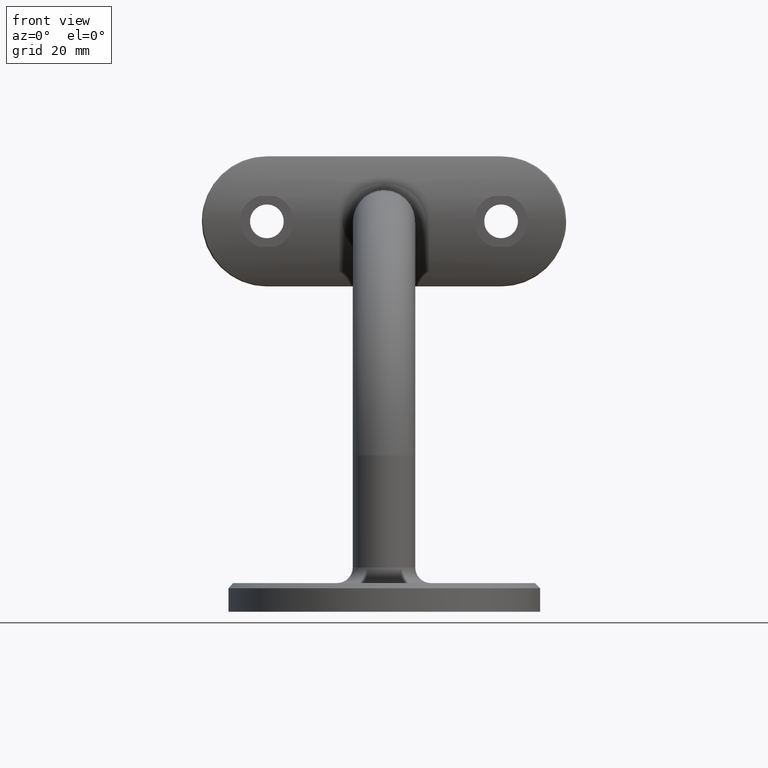
[diagram: clean part render]
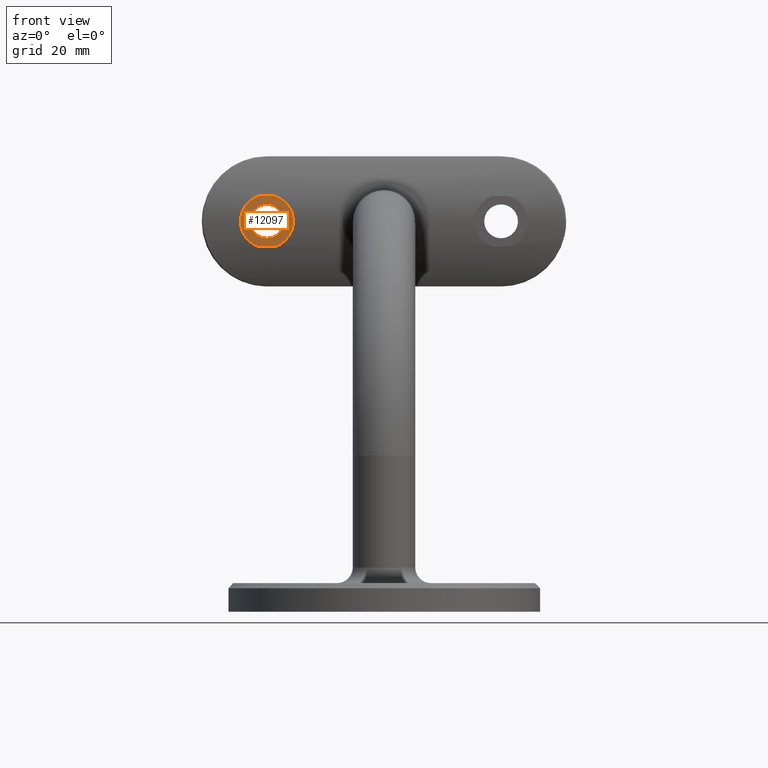
[diagram: same view with one face highlighted and labeled with its STEP entity id]
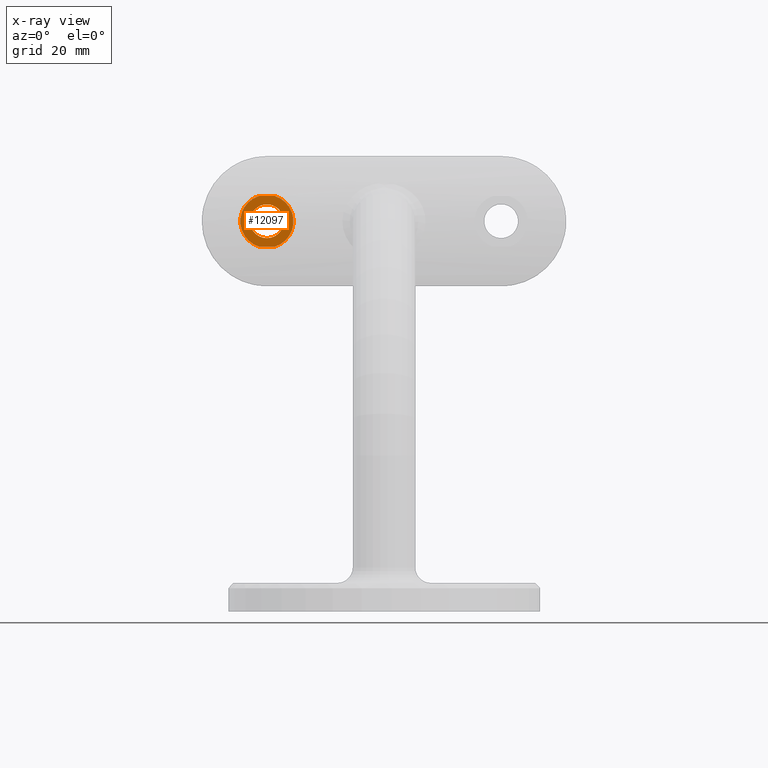
[diagram: x-ray of the same camera — body ghosted, the highlighted face saturated]
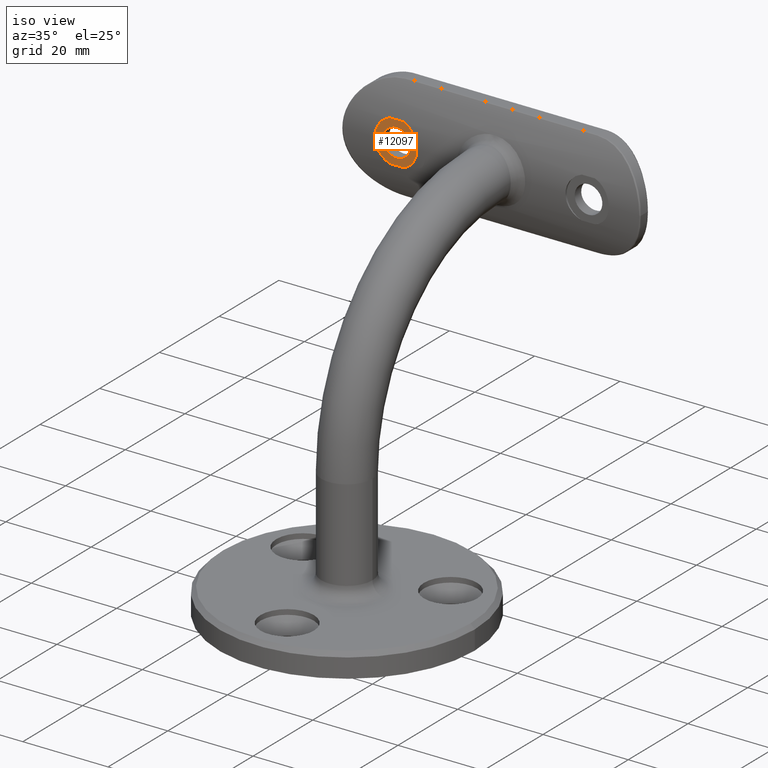
[diagram: same view with one face highlighted and labeled with its STEP entity id]
A machine part, front view. The second image highlights one B-rep face of the part: STEP entity #12097.
The next image is the same camera in x-ray: the body ghosted, the highlighted face saturated — about 0% of this face is hidden behind the body in this view.
A second angle (iso view) of the same face is appended — the face is thin or edge-on in the first view.
In plain terms, the highlighted planar face has unit normal (0, -1, 0).
Its self-contained STEP definition (entity closure, byte-faithful):
#285 = CIRCLE ( 'NONE', #2488, 5.100000000000007638 ) ;
#432 = VECTOR ( 'NONE', #10090, 1000.000000000000000 ) ;
#845 = CARTESIAN_POINT ( 'NONE',  ( -22.49999999999998934, 48.79999999999998295, 74.99999999999994316 ) ) ;
#967 = DIRECTION ( 'NONE',  ( 0.000000000000000000, 0.000000000000000000, -1.000000000000000000 ) ) ;
#1832 = CARTESIAN_POINT ( 'NONE',  ( -20.96377085042642818, 48.79999999999998295, 79.86312656631515949 ) ) ;
#2156 = DIRECTION ( 'NONE',  ( -0.000000000000000000, 1.000000000000000000, -5.551115123125783688E-16 ) ) ;
#2488 = AXIS2_PLACEMENT_3D ( 'NONE', #4188, #8123, #13449 ) ;
#2610 = AXIS2_PLACEMENT_3D ( 'NONE', #845, #2156, #11535 ) ;
#3490 = FACE_OUTER_BOUND ( 'NONE', #17289, .T. ) ;
#3882 = VERTEX_POINT ( 'NONE', #11469 ) ;
#3976 = CARTESIAN_POINT ( 'NONE',  ( -22.49999999999998934, 48.79999999999998295, 71.74999999999994316 ) ) ;
#4188 = CARTESIAN_POINT ( 'NONE',  ( -22.49999999999998934, 48.79999999999998295, 74.99999999999997158 ) ) ;
#4425 = VERTEX_POINT ( 'NONE', #14864 ) ;
#4665 = LINE ( 'NONE', #8042, #14951 ) ;
#5376 = DIRECTION ( 'NONE',  ( 1.000000000000000000, 0.000000000000000000, 0.000000000000000000 ) ) ;
#5587 = CIRCLE ( 'NONE', #14180, 5.100000000000007638 ) ;
#6346 = VERTEX_POINT ( 'NONE', #14346 ) ;
#6479 = DIRECTION ( 'NONE',  ( 0.000000000000000000, -1.000000000000000000, 5.551115123125783688E-16 ) ) ;
#8042 = CARTESIAN_POINT ( 'NONE',  ( 35.00000000000000000, 48.79999999999998295, 70.13687343368486893 ) ) ;
#8074 = ORIENTED_EDGE ( 'NONE', *, *, #17360, .T. ) ;
#8123 = DIRECTION ( 'NONE',  ( 0.000000000000000000, -1.000000000000000000, 5.551115123125783688E-16 ) ) ;
#8143 = PLANE ( 'NONE',  #8504 ) ;
#8504 = AXIS2_PLACEMENT_3D ( 'NONE', #14945, #8550, #13935 ) ;
#8550 = DIRECTION ( 'NONE',  ( 0.000000000000000000, -1.000000000000000000, 5.551115123125783688E-16 ) ) ;
#9388 = ORIENTED_EDGE ( 'NONE', *, *, #11717, .T. ) ;
#10090 = DIRECTION ( 'NONE',  ( -1.000000000000000000, -0.000000000000000000, -0.000000000000000000 ) ) ;
#10460 = ORIENTED_EDGE ( 'NONE', *, *, #14288, .T. ) ;
#10498 = ORIENTED_EDGE ( 'NONE', *, *, #12422, .T. ) ;
#10608 = CIRCLE ( 'NONE', #2610, 3.250000000000002665 ) ;
#11469 = CARTESIAN_POINT ( 'NONE',  ( -20.96377085042616173, 48.79999999999998295, 70.13687343368486893 ) ) ;
#11535 = DIRECTION ( 'NONE',  ( 0.000000000000000000, 0.000000000000000000, -1.000000000000000000 ) ) ;
#11644 = VERTEX_POINT ( 'NONE', #1832 ) ;
#11717 = EDGE_CURVE ( 'NONE', #11644, #6346, #15711, .T. ) ;
#12097 = ADVANCED_FACE ( 'NONE', ( #16747, #3490 ), #8143, .T. ) ;
#12140 = EDGE_LOOP ( 'NONE', ( #8074 ) ) ;
#12422 = EDGE_CURVE ( 'NONE', #3882, #11644, #285, .T. ) ;
#12889 = EDGE_CURVE ( 'NONE', #4425, #3882, #4665, .T. ) ;
#13449 = DIRECTION ( 'NONE',  ( 0.000000000000000000, 0.000000000000000000, -1.000000000000000000 ) ) ;
#13935 = DIRECTION ( 'NONE',  ( 0.000000000000000000, -5.551115123125783688E-16, -1.000000000000000000 ) ) ;
#14082 = CARTESIAN_POINT ( 'NONE',  ( 35.00000000000000000, 48.79999999999998295, 79.86312656631515949 ) ) ;
#14180 = AXIS2_PLACEMENT_3D ( 'NONE', #15665, #6479, #967 ) ;
#14288 = EDGE_CURVE ( 'NONE', #6346, #4425, #5587, .T. ) ;
#14346 = CARTESIAN_POINT ( 'NONE',  ( -24.03622914957355050, 48.79999999999998295, 79.86312656631515949 ) ) ;
#14864 = CARTESIAN_POINT ( 'NONE',  ( -24.03622914957381340, 48.79999999999998295, 70.13687343368486893 ) ) ;
#14945 = CARTESIAN_POINT ( 'NONE',  ( -22.49999999999998934, 48.79999999999998295, 74.99999999999997158 ) ) ;
#14951 = VECTOR ( 'NONE', #5376, 1000.000000000000000 ) ;
#15665 = CARTESIAN_POINT ( 'NONE',  ( -22.49999999999998934, 48.79999999999998295, 74.99999999999997158 ) ) ;
#15711 = LINE ( 'NONE', #14082, #432 ) ;
#15882 = VERTEX_POINT ( 'NONE', #3976 ) ;
#16385 = ORIENTED_EDGE ( 'NONE', *, *, #12889, .T. ) ;
#16747 = FACE_BOUND ( 'NONE', #12140, .T. ) ;
#17289 = EDGE_LOOP ( 'NONE', ( #9388, #10460, #16385, #10498 ) ) ;
#17360 = EDGE_CURVE ( 'NONE', #15882, #15882, #10608, .T. ) ;